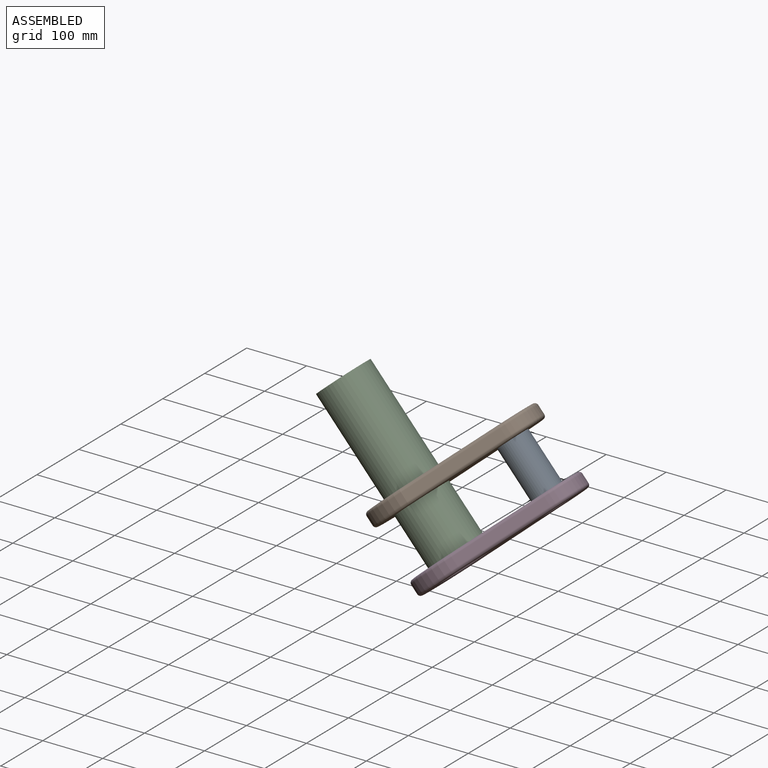
[diagram: assembled view]
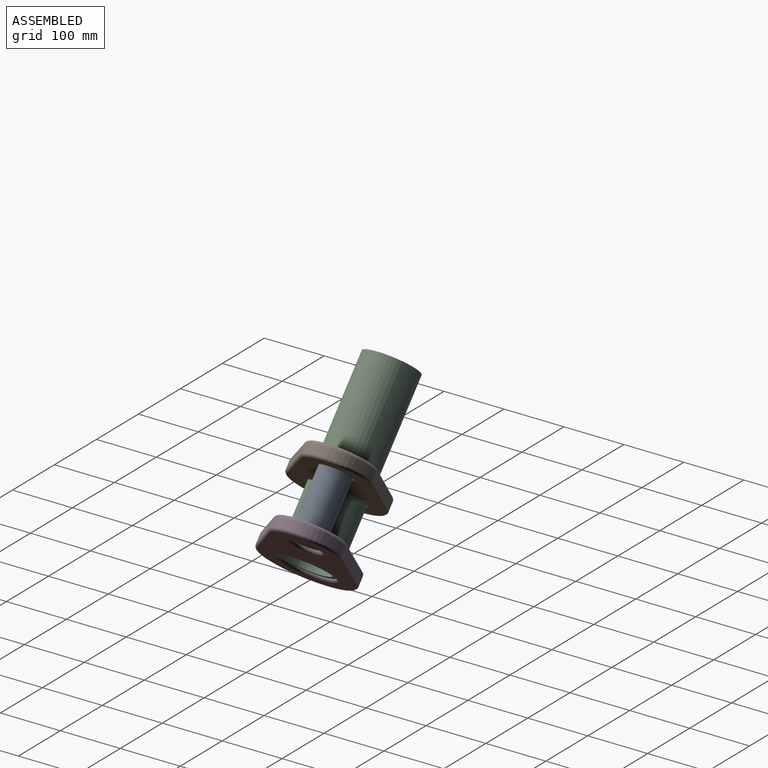
[diagram: assembled view, second angle]
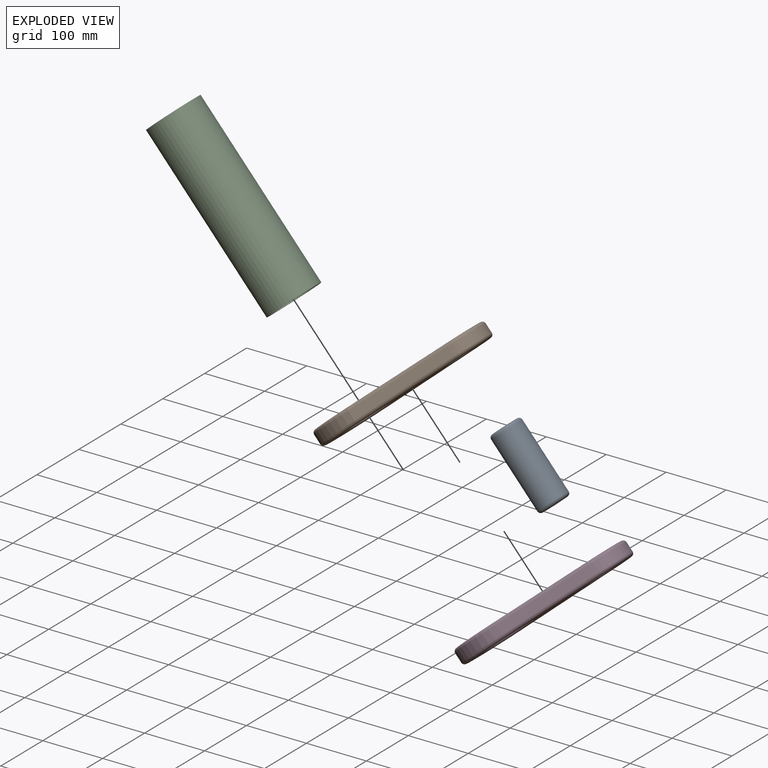
[diagram: exploded view]
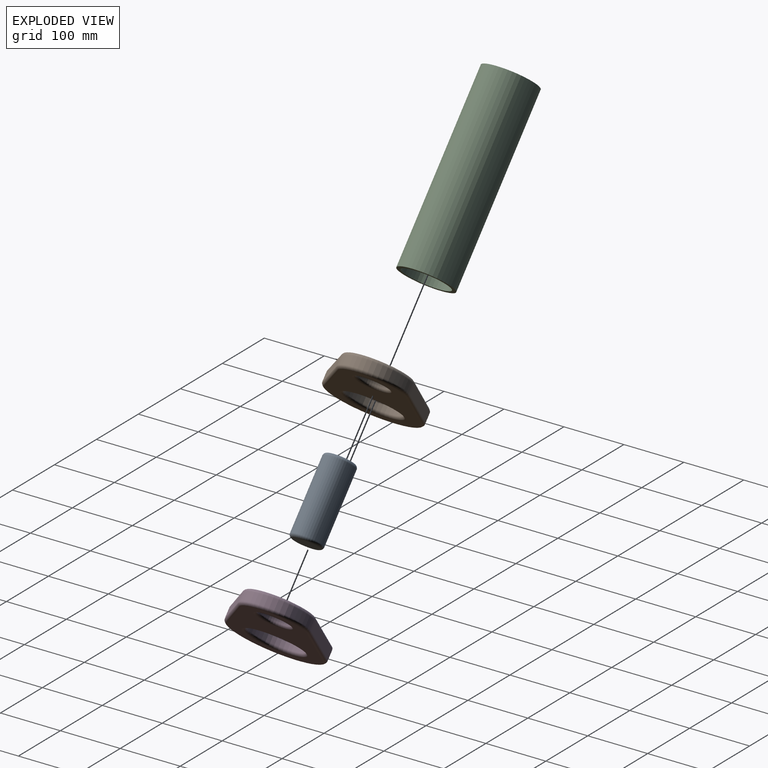
[diagram: exploded view, second angle]
ASSEMBLY  parts=4 mates=3
PART A: 5 faces, bbox 127x55x55 mm
  f0: cylinder r=25.4mm len=116.84mm, axis (-1,0,0), area 18646.8mm2, adj f3,f4
  f1: plane 40.64x40.64mm, normal (1,0,0), area 1297.2mm2, adj f3
  f2: plane 40.64x40.64mm, normal (-1,0,0), area 1297.2mm2, adj f4
  f3: torus R=20.32mm, axis (1,0,0), area 1180.9mm2, adj f0,f1
  f4: torus R=20.32mm, axis (1,0,0), area 1180.9mm2, adj f0,f2
PART B: 20 faces, bbox 295.3x25.4x165 mm
  f0: plane 161.4x22.3mm, normal (0.14,0,0.99), area 2483.1mm2, adj f1,f4,f9,f13
  f1: cylinder r=76.2mm len=152.4mm, axis (0,1,0), area 3813.2mm2, adj f0,f2,f11,f15
  f2: plane 150.87x21.57mm, normal (0.14,0,-0.99), area 2322.6mm2, adj f1,f4,f10,f14
  f3: cylinder r=25.4mm len=50.8mm, axis (0,1,0), area 2432.2mm2, adj f17,f19
  f4: cylinder r=54.41mm len=107.76mm, axis (0,1,0), area 2373.5mm2, adj f0,f2,f8,f12
  f5: cylinder r=44.45mm len=88.9mm, axis (0,1,0), area 4256.3mm2, adj f16,f18
  f6: plane 274.4x142.24mm, normal (0,-1,0), area 19812.1mm2, adj f12,f13,f14,f15,f16,f17
  f7: plane 274.4x142.24mm, normal (0,1,0), area 19812.1mm2, adj f8,f9,f10,f11,f18,f19
  f8: torus R=49.33mm, axis (0,-1,0), area 1200.6mm2, adj f4,f7,f9,f10
  f9: cylinder r=5.08mm len=162.09mm, axis (-0.99,0,0.14), area 1299.1mm2, adj f0,f7,f8,f11
  f10: cylinder r=5.08mm len=151.58mm, axis (0.99,0,0.14), area 1216.1mm2, adj f2,f7,f8,f11
  f11: torus R=71.12mm, axis (0,-1,0), area 1947.2mm2, adj f1,f7,f9,f10
  f12: torus R=49.33mm, axis (0,-1,0), area 1200.6mm2, adj f4,f6,f13,f14
  f13: cylinder r=5.08mm len=162.09mm, axis (0.99,0,-0.14), area 1299.1mm2, adj f0,f6,f12,f15
  f14: cylinder r=5.08mm len=151.58mm, axis (-0.99,0,-0.14), area 1216.1mm2, adj f2,f6,f12,f15
  f15: torus R=71.12mm, axis (0,-1,0), area 1947.2mm2, adj f1,f6,f13,f14
  f16: torus R=49.53mm, axis (0,-1,0), area 2321.2mm2, adj f5,f6
  f17: torus R=30.48mm, axis (0,-1,0), area 1366mm2, adj f3,f6
  f18: torus R=49.53mm, axis (0,-1,0), area 2321.2mm2, adj f5,f7
  f19: torus R=30.48mm, axis (0,-1,0), area 1366mm2, adj f3,f7
PART C: 4 faces, bbox 88.9x304.8x88.9 mm
  f0: cylinder r=38.1mm len=304.8mm, axis (0,1,0), area 72965.9mm2, adj f2,f3
  f1: cylinder r=44.45mm len=304.8mm, axis (0,1,0), area 85126.9mm2, adj f2,f3
  f2: plane 88.9x88.9mm, normal (0,-1,0), area 1646.8mm2, adj f0,f1
  f3: plane 88.9x88.9mm, normal (0,1,0), area 1646.8mm2, adj f0,f1
PART D: same geometry as B
PLACE A rot(axis=(0.11,-0.97,0.24),132.8deg) t=(-157.24,-92.29,66.62)mm
PLACE B rot(axis=(0.82,-0.12,0.56),90.8deg) t=(-366.18,-55.08,58.71)mm fixed
PLACE C rot(axis=(-0.87,-0.49,-0.11),108.3deg) t=(-355.51,46.45,-141.68)mm
PLACE D rot(axis=(-0.87,-0.49,-0.11),108.3deg) t=(-276.1,-53.71,-44.73)mm
MATE revolute C.f0 <-> D.f5  axis (0.66,0,-0.75) through (-279.45,-53.71,-40.92)mm
MATE revolute B.f3 <-> A.f0  axis (-0.66,0,0.75) through (-260.27,15.92,145.13)mm
MATE revolute A.f0 <-> D.f3  axis (0.66,0,-0.75) through (-176.37,15.92,49.79)mm
